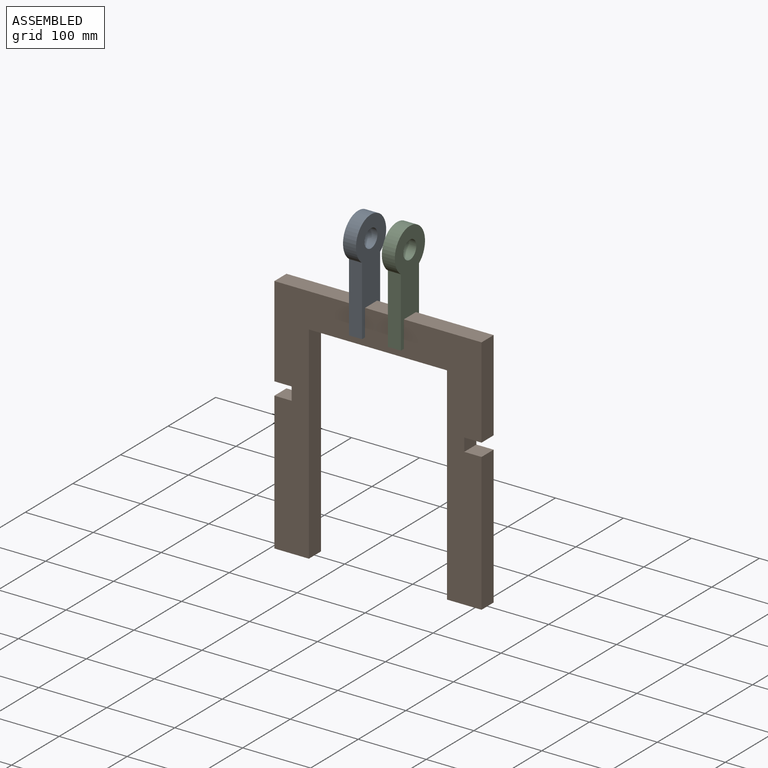
[diagram: assembled view]
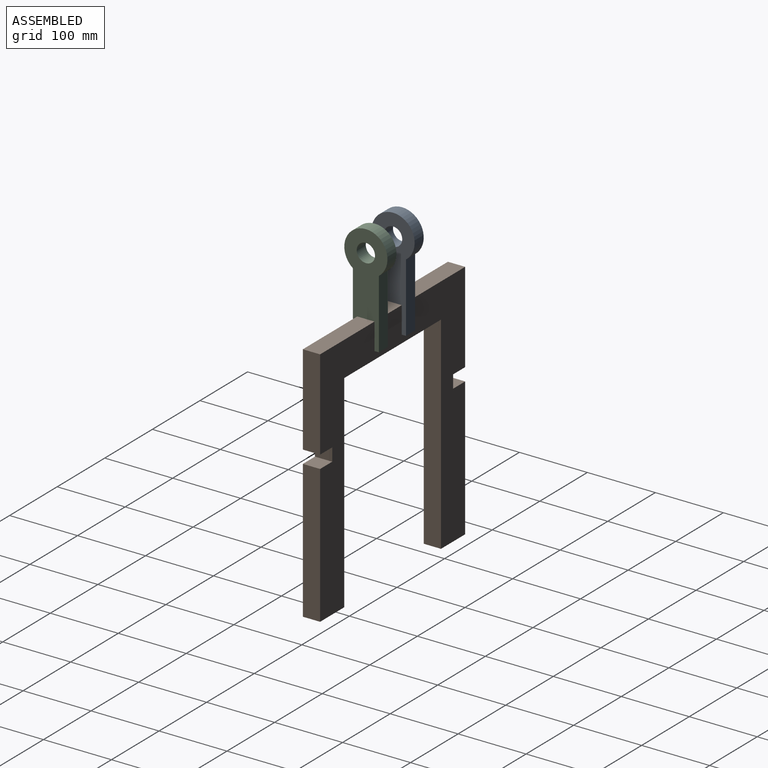
[diagram: assembled view, second angle]
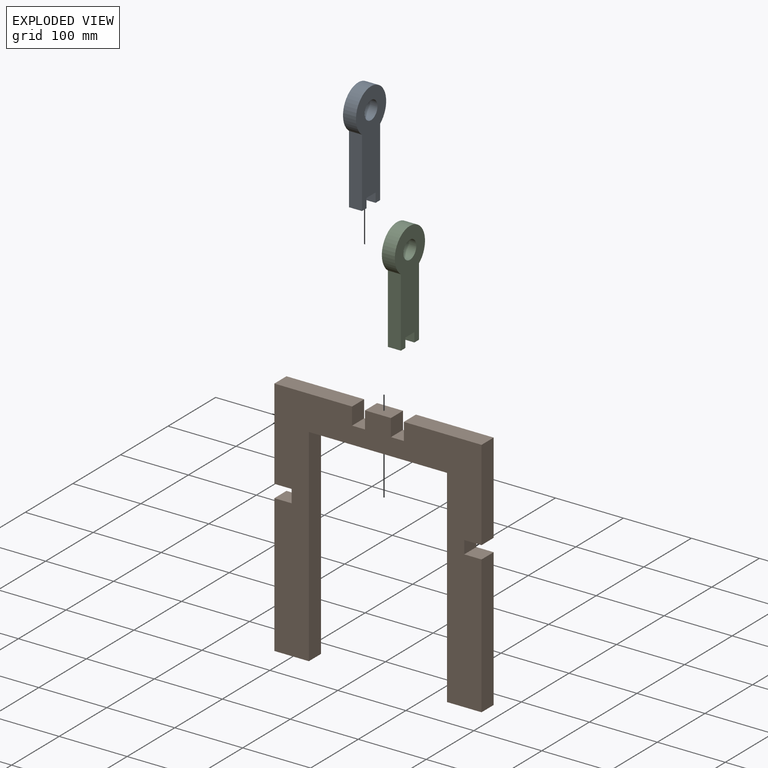
[diagram: exploded view]
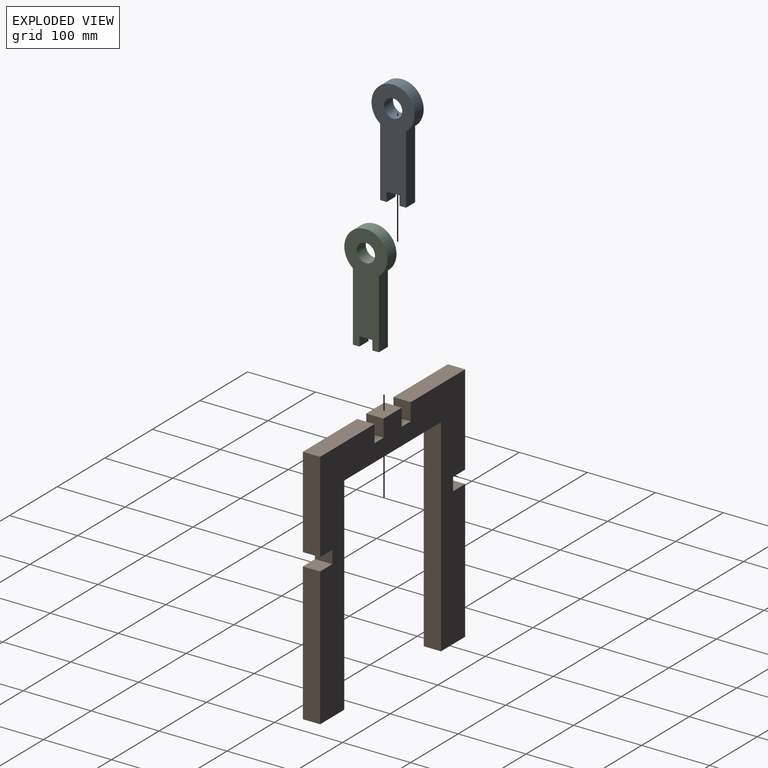
[diagram: exploded view, second angle]
ASSEMBLY  parts=3 mates=2
PART A: 11 faces, bbox 63.5x19.1x158.8 mm
  f0: plane 101.6x19.05mm, normal (1,0,0), area 1935.5mm2, adj f1,f8,f9,f10
  f1: cylinder r=31.75mm len=63.5mm, axis (0,1,0), area 3021.9mm2, adj f0,f2,f9,f10
  f2: plane 101.6x19.05mm, normal (-1,0,0), area 1935.5mm2, adj f1,f3,f9,f10
  f3: plane 19.05x9.53mm, normal (0,0,-1), area 181.5mm2, adj f2,f4,f9,f10
  f4: plane 19.05x13.83mm, normal (1,0,0), area 263.4mm2, adj f3,f5,f9,f10
  f5: plane 19.05x19.05mm, normal (0,0,-1), area 362.9mm2, adj f4,f6,f9,f10
  f6: plane 19.05x13.83mm, normal (-1,0,0), area 263.4mm2, adj f5,f8,f9,f10
  f7: cylinder r=13.46mm len=26.92mm, axis (0,1,0), area 1611.3mm2, adj f9,f10
  f8: plane 19.05x9.53mm, normal (0,0,-1), area 181.5mm2, adj f0,f6,f9,f10
  f9: plane 158.75x63.5mm, normal (0,-1,0), area 6040.4mm2, adj f0,f1,f2,f3,f4,f5,f6,f7
  f10: plane 158.75x63.5mm, normal (0,1,0), area 6040.4mm2, adj f0,f1,f2,f3,f4,f5,f6,f7
PART B: 26 faces, bbox 304.8x25.4x355.6 mm
  f0: plane 114.3x25.4mm, normal (0,0,1), area 2903.2mm2, adj f1,f23,f24,f25
  f1: plane 133.35x25.4mm, normal (-1,0,0), area 3387.1mm2, adj f0,f2,f24,f25
  f2: plane 25.4x25.4mm, normal (0,0,-1), area 645.2mm2, adj f1,f3,f24,f25
  f3: plane 25.4x19.05mm, normal (-1,0,0), area 483.9mm2, adj f2,f4,f24,f25
  f4: plane 25.4x25.4mm, normal (0,0,1), area 645.2mm2, adj f3,f5,f24,f25
  f5: plane 203.2x25.4mm, normal (-1,0,0), area 5161.3mm2, adj f4,f6,f24,f25
  f6: plane 50.8x25.4mm, normal (0,0,-1), area 1290.3mm2, adj f5,f7,f24,f25
  f7: plane 304.8x25.4mm, normal (1,0,0), area 7741.9mm2, adj f6,f8,f24,f25
  f8: plane 203.2x25.4mm, normal (0,0,-1), area 5161.3mm2, adj f7,f9,f24,f25
  f9: plane 304.8x25.4mm, normal (-1,0,0), area 7741.9mm2, adj f8,f10,f24,f25
  f10: plane 50.8x25.4mm, normal (0,0,-1), area 1290.3mm2, adj f9,f11,f24,f25
  f11: plane 203.2x25.4mm, normal (1,0,0), area 5161.3mm2, adj f10,f12,f24,f25
  f12: plane 25.4x25.4mm, normal (0,0,1), area 645.2mm2, adj f11,f13,f24,f25
  f13: plane 25.4x19.05mm, normal (1,0,0), area 483.9mm2, adj f12,f14,f24,f25
  f14: plane 25.4x25.4mm, normal (0,0,-1), area 645.2mm2, adj f13,f15,f24,f25
  f15: plane 133.35x25.4mm, normal (1,0,0), area 3387.1mm2, adj f14,f16,f24,f25
  f16: plane 114.3x25.4mm, normal (0,0,1), area 2903.2mm2, adj f15,f17,f24,f25
  f17: plane 25.4x25.4mm, normal (-1,0,0), area 645.2mm2, adj f16,f18,f24,f25
  f18: plane 25.4x19.05mm, normal (0,0,1), area 483.9mm2, adj f17,f19,f24,f25
  f19: plane 25.4x25.4mm, normal (1,0,0), area 645.2mm2, adj f18,f20,f24,f25
  f20: plane 38.1x25.4mm, normal (0,0,1), area 967.7mm2, adj f19,f21,f24,f25
  f21: plane 25.4x25.4mm, normal (-1,0,0), area 645.2mm2, adj f20,f22,f24,f25
  f22: plane 25.4x19.05mm, normal (0,0,1), area 483.9mm2, adj f21,f23,f24,f25
  f23: plane 25.4x25.4mm, normal (1,0,0), area 645.2mm2, adj f0,f22,f24,f25
  f24: plane 355.6x304.8mm, normal (0,-1,0), area 44516mm2, adj f0,f1,f2,f3,f4,f5,f6,f7
  f25: plane 355.6x304.8mm, normal (0,1,0), area 44516mm2, adj f0,f1,f2,f3,f4,f5,f6,f7
PART C: same geometry as A
PLACE A rot(axis=(0,0,1),90deg) t=(-102.41,-120.91,81.04)mm
PLACE B t=(4.71,-141.32,53.26)mm
PLACE C rot(axis=(0,0,1),90deg) t=(-45.26,-120.91,81.04)mm
MATE fastened C.f5 <-> B.f18  axis (0,0,-1) through (-35.73,-154.02,27.86)mm
MATE fastened A.f5 <-> B.f22  axis (0,0,-1) through (-92.88,-154.02,27.86)mm
